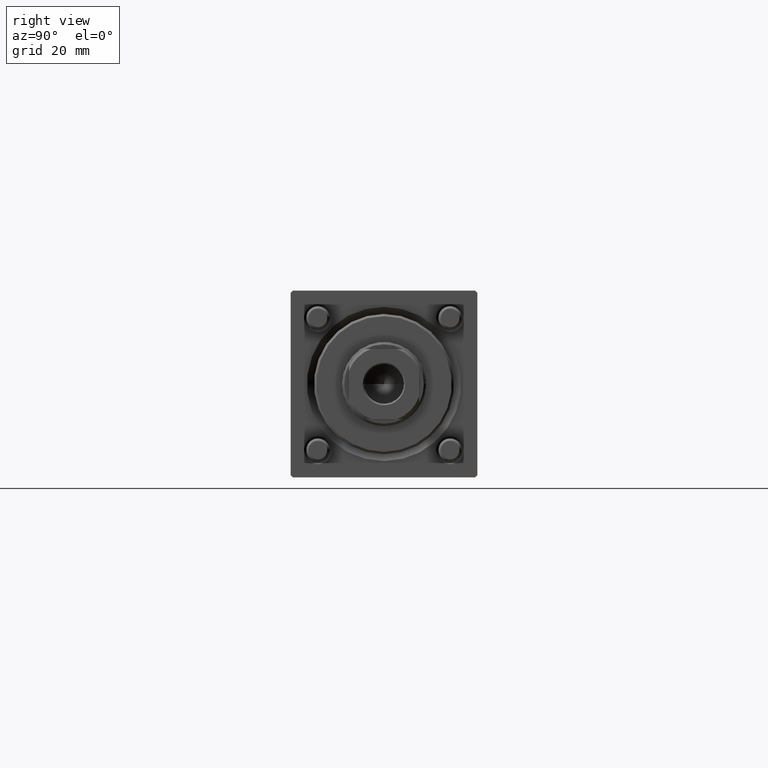
[diagram: clean part render]
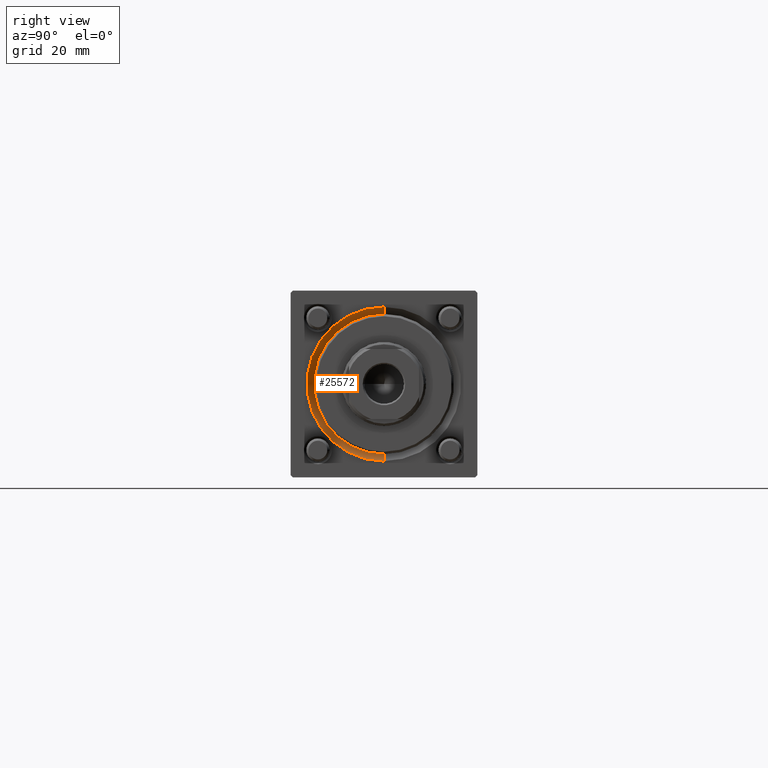
[diagram: same view with one face highlighted and labeled with its STEP entity id]
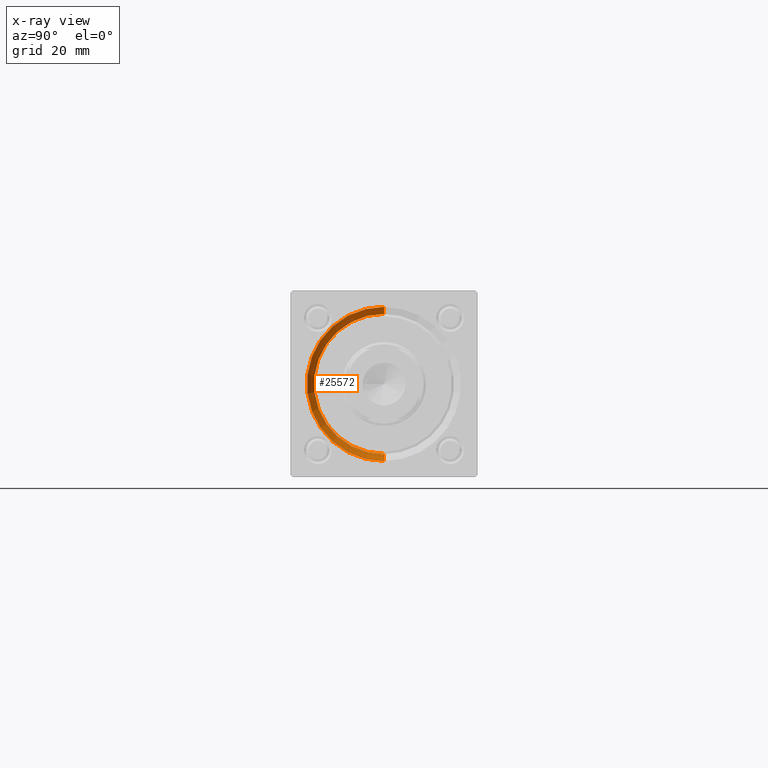
[diagram: x-ray of the same camera — body ghosted, the highlighted face saturated]
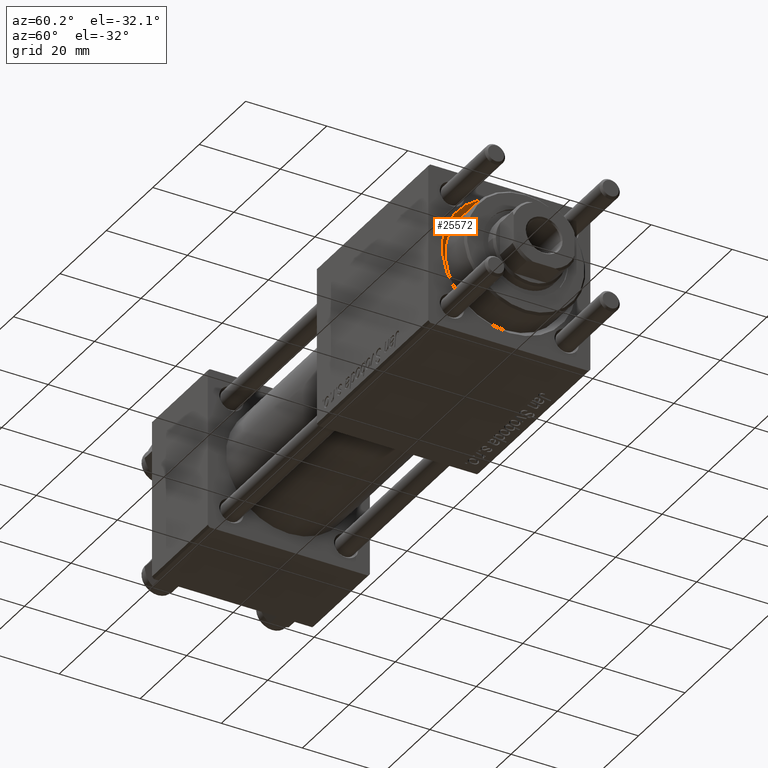
[diagram: same view with one face highlighted and labeled with its STEP entity id]
A machine part, right view. The second image highlights one B-rep face of the part: STEP entity #25572.
The next image is the same camera in x-ray: the body ghosted, the highlighted face saturated — about 0% of this face is hidden behind the body in this view.
A second angle (auxiliary view) of the same face is appended — the face is thin or edge-on in the first view.
In plain terms, the highlighted conical surface has half-angle 45 deg.
Its self-contained STEP definition (entity closure, byte-faithful):
#1417 = CIRCLE ( 'NONE', #8758, 15.00000000000000000 ) ;
#1756 = EDGE_CURVE ( 'NONE', #46624, #43527, #38232, .T. ) ;
#2283 = ORIENTED_EDGE ( 'NONE', *, *, #48486, .F. ) ;
#2521 = EDGE_CURVE ( 'NONE', #19023, #43527, #10840, .T. ) ;
#3287 = LINE ( 'NONE', #38828, #39645 ) ;
#4772 = DIRECTION ( 'NONE',  ( 1.000000000000000000, 0.000000000000000000, 0.000000000000000000 ) ) ;
#5886 = FACE_OUTER_BOUND ( 'NONE', #11926, .T. ) ;
#8758 = AXIS2_PLACEMENT_3D ( 'NONE', #26552, #4772, #12817 ) ;
#8966 = ORIENTED_EDGE ( 'NONE', *, *, #2521, .F. ) ;
#9963 = DIRECTION ( 'NONE',  ( -1.000000000000000000, -0.000000000000000000, -0.000000000000000000 ) ) ;
#10279 = VERTEX_POINT ( 'NONE', #31863 ) ;
#10404 = CARTESIAN_POINT ( 'NONE',  ( 119.0000000000000142, 0.000000000000000000, -16.50000000000001421 ) ) ;
#10461 = CARTESIAN_POINT ( 'NONE',  ( 117.5000000000000000, 0.000000000000000000, 0.000000000000000000 ) ) ;
#10840 = CIRCLE ( 'NONE', #51101, 16.50000000000001421 ) ;
#11926 = EDGE_LOOP ( 'NONE', ( #2283, #31158, #8966, #19402 ) ) ;
#12817 = DIRECTION ( 'NONE',  ( 0.000000000000000000, 0.000000000000000000, 1.000000000000000000 ) ) ;
#14762 = DIRECTION ( 'NONE',  ( 1.000000000000000000, 0.000000000000000000, 0.000000000000000000 ) ) ;
#18227 = EDGE_CURVE ( 'NONE', #10279, #19023, #3287, .T. ) ;
#19023 = VERTEX_POINT ( 'NONE', #10404 ) ;
#19402 = ORIENTED_EDGE ( 'NONE', *, *, #18227, .F. ) ;
#23216 = AXIS2_PLACEMENT_3D ( 'NONE', #10461, #14762, #32240 ) ;
#24181 = DIRECTION ( 'NONE',  ( 0.7071067811865474617, 8.659560562354932858E-17, 0.7071067811865474617 ) ) ;
#25572 = ADVANCED_FACE ( 'NONE', ( #5886 ), #44299, .F. ) ;
#26552 = CARTESIAN_POINT ( 'NONE',  ( 117.5000000000000000, 0.000000000000000000, 0.000000000000000000 ) ) ;
#31158 = ORIENTED_EDGE ( 'NONE', *, *, #1756, .T. ) ;
#31863 = CARTESIAN_POINT ( 'NONE',  ( 117.5000000000000000, 0.000000000000000000, -15.00000000000000000 ) ) ;
#32240 = DIRECTION ( 'NONE',  ( 0.000000000000000000, 0.000000000000000000, -1.000000000000000000 ) ) ;
#32584 = CARTESIAN_POINT ( 'NONE',  ( 119.0000000000000142, 0.000000000000000000, 0.000000000000000000 ) ) ;
#34794 = DIRECTION ( 'NONE',  ( 0.7071067811865474617, 0.000000000000000000, -0.7071067811865474617 ) ) ;
#36902 = CARTESIAN_POINT ( 'NONE',  ( 117.5000000000000000, 1.836970198721029589E-15, 15.00000000000000000 ) ) ;
#38232 = LINE ( 'NONE', #45973, #39207 ) ;
#38828 = CARTESIAN_POINT ( 'NONE',  ( 117.5000000000000000, 0.000000000000000000, -15.00000000000000000 ) ) ;
#39207 = VECTOR ( 'NONE', #24181, 1000.000000000000114 ) ;
#39645 = VECTOR ( 'NONE', #34794, 1000.000000000000114 ) ;
#40966 = CARTESIAN_POINT ( 'NONE',  ( 119.0000000000000142, 2.020667218593134678E-15, 16.50000000000001421 ) ) ;
#41199 = DIRECTION ( 'NONE',  ( 0.000000000000000000, 0.000000000000000000, 1.000000000000000000 ) ) ;
#43527 = VERTEX_POINT ( 'NONE', #40966 ) ;
#44299 = CONICAL_SURFACE ( 'NONE', #23216, 15.00000000000000000, 0.7853981633974482790 ) ;
#45973 = CARTESIAN_POINT ( 'NONE',  ( 117.5000000000000000, 1.836970198721029589E-15, 15.00000000000000000 ) ) ;
#46624 = VERTEX_POINT ( 'NONE', #36902 ) ;
#48486 = EDGE_CURVE ( 'NONE', #46624, #10279, #1417, .T. ) ;
#51101 = AXIS2_PLACEMENT_3D ( 'NONE', #32584, #9963, #41199 ) ;